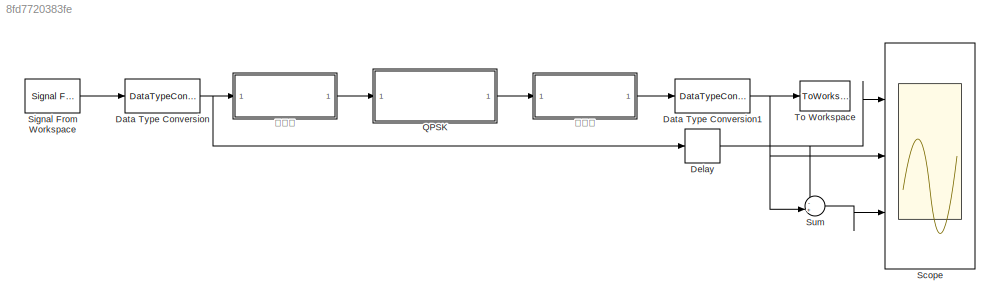
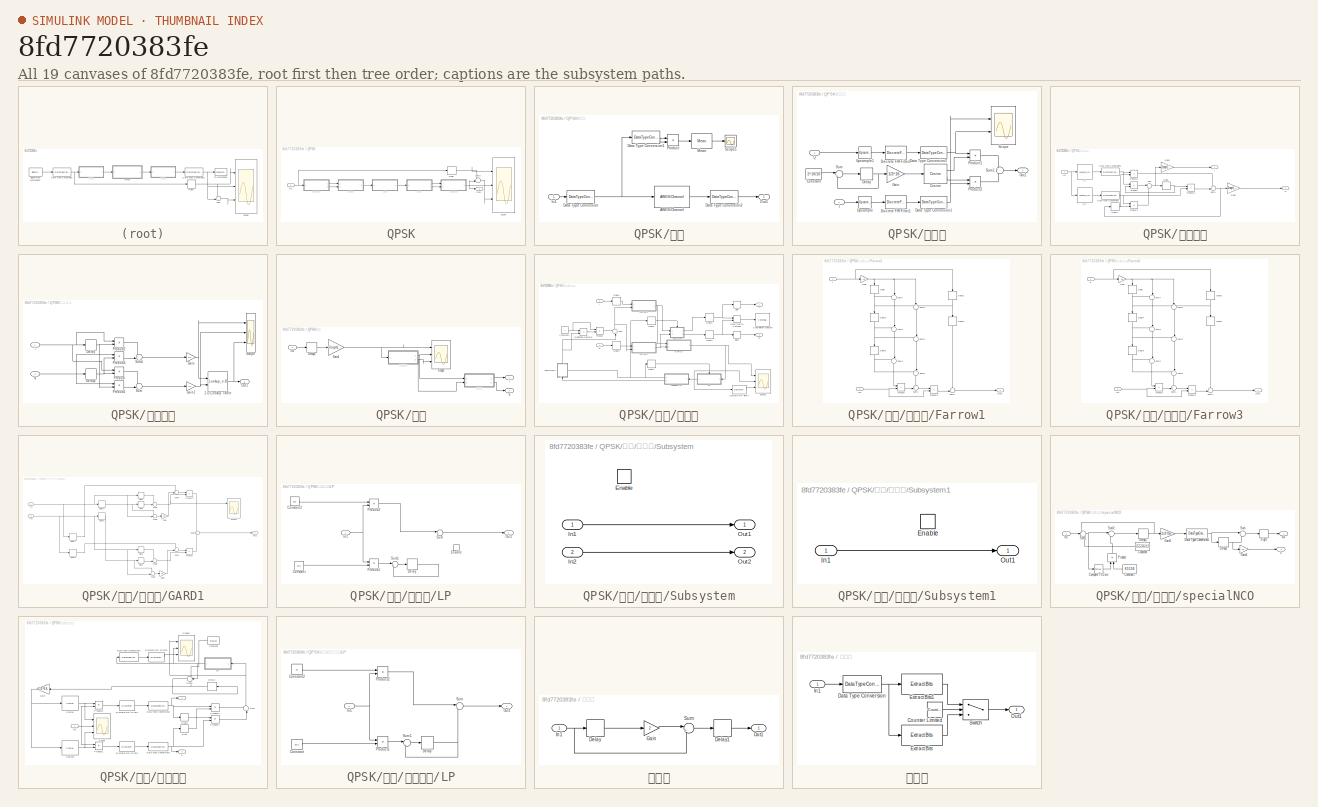
[diagram: thumbnail index - all 19 canvases of the model, root first then tree order]
MODEL slx_8fd7720383fe
KIND model
CONFIG AbsTol = auto
CONFIG EnableMultiTasking = off
CONFIG FixedStep = auto
CONFIG MaxStep = auto
CONFIG MinStep = auto
CONFIG RelTol = 1e-3
CONFIG SampleTimeConstraint = Unconstrained
CONFIG Solver = VariableStepAuto
CONFIG SolverName = VariableStepAuto
CONFIG StartTime = 0.0
CONFIG StopTime = 200
BLOCK [DataTypeConversion] Data Type Conversion
  OutDataTypeStr = int8
  RndMeth = Floor
  SaturateOnIntegerOverflow = off
BLOCK [DataTypeConversion] Data Type Conversion1
  OutDataTypeStr = boolean
  RndMeth = Floor
  SaturateOnIntegerOverflow = off
BLOCK [Delay] Delay
  DelayLength = 19
  InitialCondition = 0
  InputPortMap = u0
  Ports = [1, 1]
  SampleTime = 0.05
BLOCK [SubSystem] QPSK
  Ports = [1, 1]
  RequestExecContextInheritance = off
BLOCK [Delay] QPSK/Delay
  DelayLength = 8
  InitialCondition = 0
  InputPortMap = u0
  Ports = [1, 1]
  SampleTime = 0.1
BLOCK [Inport] QPSK/In1
BLOCK [Outport] QPSK/Out1
BLOCK [Scope] QPSK/Scope
  Floating = off
  NumInputPorts = 3
  Ports = [3]
  ScopeSpecificationString = Simulink.scopes.TimeScopeBlockCfg('CurrentConfiguration', extmgr.ConfigurationSet(extmgr.Configuration('Core','General UI',true),extmgr.Configuration('Core','Source UI',true),extmgr.Configuration('Sources','WiredSimulink',true,'DataLoggingVariableName','ScopeData1'),extmgr.Configuration('Visuals','Time Domain',true,'SerializedDisplays',{struct('MinYLimReal','-0.375','MaxYLimReal','3.375','YLabelRe...<+3001ch>
BLOCK [Sum] QPSK/Sum3
  Inputs = -+|
  Ports = [2, 1]
BLOCK [SubSystem] QPSK/信道
  Ports = [1, 1]
  RequestExecContextInheritance = off
BLOCK [Reference] QPSK/信道/AWGN Channel  REF=commchan3/AWGN
Channel
  Ports = [1, 1]
  SourceBlock = commchan3/AWGN\nChannel
  SourceProductBaseCode = CM
  SourceType = AWGN Channel
  UserDataPersistent = on
BLOCK [DataTypeConversion] QPSK/信道/Data Type Conversion
  OutDataTypeStr = double
  RndMeth = Floor
  SaturateOnIntegerOverflow = off
BLOCK [DataTypeConversion] QPSK/信道/Data Type Conversion1
  RndMeth = Floor
  SaturateOnIntegerOverflow = off
BLOCK [DataTypeConversion] QPSK/信道/Data Type Conversion2
  OutDataTypeStr = fixdt(1,32,28)
  RndMeth = Floor
  SaturateOnIntegerOverflow = off
BLOCK [Inport] QPSK/信道/In1
BLOCK [Reference] QPSK/信道/Mean  REF=dspstat3/Mean
  Ports = [1, 1]
  SourceBlock = dspstat3/Mean
  SourceProductBaseCode = DS
  SourceType = Mean
  UserDataPersistent = on
BLOCK [Outport] QPSK/信道/Out1
BLOCK [Product] QPSK/信道/Product
  Ports = [2, 1]
BLOCK [Scope] QPSK/信道/Scope1
  Floating = off
  NumInputPorts = 1
  Ports = [1]
  ScopeSpecificationString = Simulink.scopes.TimeScopeBlockCfg('CurrentConfiguration', extmgr.ConfigurationSet(extmgr.Configuration('Core','General UI',true),extmgr.Configuration('Core','Source UI',true),extmgr.Configuration('Sources','WiredSimulink',true,'DataLoggingVariableName','ScopeData1'),extmgr.Configuration('Visuals','Time Domain',true,'SerializedDisplays',{struct('MinYLimReal','0.04995','MaxYLimReal','0.05116','YLabe...<+1434ch>
BLOCK [SubSystem] QPSK/发射机
  Ports = [2, 1]
  RequestExecContextInheritance = off
BLOCK [Constant] QPSK/发射机/Constant
  Value = 2^16/10
BLOCK [Reference] QPSK/发射机/Cosine  REF=simulink/Lookup
Tables/Cosine
  Ports = [1, 2]
  SourceBlock = simulink/Lookup\nTables/Cosine
  SourceProductBaseCode = SL
  SourceType = Sine and Cosine
BLOCK [DataTypeConversion] QPSK/发射机/Data Type Conversion1
  OutDataTypeStr = fixdt(1,32,28)
  RndMeth = Floor
  SaturateOnIntegerOverflow = off
BLOCK [DataTypeConversion] QPSK/发射机/Data Type Conversion2
  OutDataTypeStr = fixdt(1,32,28)
  RndMeth = Floor
  SaturateOnIntegerOverflow = off
BLOCK [Delay] QPSK/发射机/Delay
  DelayLength = 1
  InitialCondition = 0
  InputPortMap = u0
  Ports = [1, 1]
  SampleTime = 0.01
BLOCK [DiscreteFir] QPSK/发射机/Discrete FIR Filter1
  Coefficients = [-0.0119566381847077	-0.00554510890605436	0.00241382573479933	0.0111377436911783	0.0196550101509641	0.0268984171784200	0.0318197882559029	0.0335144832609033	0.0313427539687735	0.0250342434675171	0.0147627477015526	0.00118065713392810	-0.0145939012931128	-0.0310396234166703	-0.0463415853998726	-0.0585399944060724	-0.0657057782491950	-0.0661271775764019	-0.0584895064408425	-0.0420300071775653	-0.016...<+773ch>  <repeated x5 — deduplicated; at blocks: Discrete FIR Filter1, Discrete FIR Filter2, Discrete FIR Filter5>
  InputPortMap = u0
  OutputPortMap = o0
  Ports = [1, 1]
BLOCK [DiscreteFir] QPSK/发射机/Discrete FIR Filter2
  InputPortMap = u0
  OutputPortMap = o0
  Ports = [1, 1]
BLOCK [Gain] QPSK/发射机/Gain
  Gain = 1/2^16
BLOCK [Inport] QPSK/发射机/I
BLOCK [Outport] QPSK/发射机/Out1
BLOCK [Product] QPSK/发射机/Product1
  OutDataTypeStr = fixdt(1,32,28)
  Ports = [2, 1]
BLOCK [Product] QPSK/发射机/Product2
  OutDataTypeStr = fixdt(1,32,28)
  Ports = [2, 1]
BLOCK [Inport] QPSK/发射机/Q
  Port = 2
BLOCK [Scope] QPSK/发射机/Scope
  Floating = off
  NumInputPorts = 2
  Ports = [2]
  ScopeSpecificationString = Simulink.scopes.TimeScopeBlockCfg('CurrentConfiguration', extmgr.ConfigurationSet(extmgr.Configuration('Core','General UI',true),extmgr.Configuration('Core','Source UI',true),extmgr.Configuration('Sources','WiredSimulink',true,'DataLoggingVariableName','ScopeData3'),extmgr.Configuration('Visuals','Time Domain',true,'SerializedDisplays',{struct('MinYLimReal','-0.43095','MaxYLimReal','0.41183','YLab...<+2230ch>
BLOCK [Sum] QPSK/发射机/Sum
  Inputs = |++
  OutDataTypeStr = fixdt(0,32,16)
  OutMax = [2^16-1]
  OutMin = [0]
  Ports = [2, 1]
BLOCK [Sum] QPSK/发射机/Sum1
  Inputs = +|+
  Ports = [2, 1]
BLOCK [Reference] QPSK/发射机/Upsample  REF=dspsigops/Upsample
  Ports = [1, 1]
  SourceBlock = dspsigops/Upsample
  SourceProductBaseCode = DS
  SourceType = Upsample
  UserDataPersistent = on
BLOCK [Reference] QPSK/发射机/Upsample1  REF=dspsigops/Upsample
  Ports = [1, 1]
  SourceBlock = dspsigops/Upsample
  SourceProductBaseCode = DS
  SourceType = Upsample
  UserDataPersistent = on
BLOCK [SubSystem] QPSK/差分编码
  Ports = [1, 2]
  RequestExecContextInheritance = off
BLOCK [DataTypeConversion] QPSK/差分编码/Data Type Conversion
  OutDataTypeStr = int8
  RndMeth = Floor
  SaturateOnIntegerOverflow = off
BLOCK [DataTypeConversion] QPSK/差分编码/Data Type Conversion1
  OutDataTypeStr = int8
  RndMeth = Floor
  SaturateOnIntegerOverflow = off
BLOCK [Delay] QPSK/差分编码/Delay
  DelayLength = 1
  InitialCondition = 1
  InputPortMap = u0
  Ports = [1, 1]
  SampleTime = 0.1
BLOCK [Delay] QPSK/差分编码/Delay1
  DelayLength = 1
  InitialCondition = 1
  InputPortMap = u0
  Ports = [1, 1]
  SampleTime = 0.1
BLOCK [Gain] QPSK/差分编码/Gain1
  Gain = 1/sqrt(2)
  OutDataTypeStr = fixdt(1,32,28)
BLOCK [Gain] QPSK/差分编码/Gain2
  Gain = 1/sqrt(2)
  OutDataTypeStr = fixdt(1,32,28)
BLOCK [Outport] QPSK/差分编码/I
BLOCK [Inport] QPSK/差分编码/In1
BLOCK [Lookup_n-D] QPSK/差分编码/I路
  BreakpointsForDimension1 = [0:3]
  BreakpointsForDimension2 = [0:3]
  ExtrapMethod = Clip
  InternalRulePriority = Speed
  NumberOfTableDimensions = 1
  Ports = [1, 1]
  RndMeth = Simplest
  Table = [1 0 0 -1]
BLOCK [Product] QPSK/差分编码/Product
  OutDataTypeStr = int8
  Ports = [2, 1]
BLOCK [Product] QPSK/差分编码/Product1
  OutDataTypeStr = int8
  Ports = [2, 1]
BLOCK [Product] QPSK/差分编码/Product2
  OutDataTypeStr = int8
  Ports = [2, 1]
BLOCK [Product] QPSK/差分编码/Product3
  OutDataTypeStr = int8
  Ports = [2, 1]
BLOCK [Outport] QPSK/差分编码/Q
  Port = 2
BLOCK [Lookup_n-D] QPSK/差分编码/Q路
  BreakpointsForDimension1 = [0:3]
  BreakpointsForDimension2 = [0:3]
  ExtrapMethod = Clip
  InternalRulePriority = Speed
  NumberOfTableDimensions = 1
  Ports = [1, 1]
  RndMeth = Simplest
  Table = [0 1 -1 0]
BLOCK [Sum] QPSK/差分编码/Sum
  Inputs = |+-
  Ports = [2, 1]
BLOCK [Sum] QPSK/差分编码/Sum1
  Inputs = ++|
  Ports = [2, 1]
BLOCK [SubSystem] QPSK/差分解码
  Ports = [2, 1]
  RequestExecContextInheritance = off
BLOCK [Lookup_n-D] QPSK/差分解码/2-D Lookup Table
  BreakpointsForDimension1 = [-1 0 1]
  BreakpointsForDimension2 = [-1 0 1]
  ExtrapMethod = Clip
  InternalRulePriority = Speed
  Ports = [2, 1]
  RndMeth = Simplest
  Table = [0 3 0; 2 0 1; 0 0 0]
BLOCK [Delay] QPSK/差分解码/Delay
  DelayLength = 1
  InitialCondition = 0
  InputPortMap = u0
  Ports = [1, 1]
  SampleTime = 0.1
BLOCK [Delay] QPSK/差分解码/Delay1
  DelayLength = 1
  InitialCondition = 0
  InputPortMap = u0
  Ports = [1, 1]
  SampleTime = 0.1
BLOCK [Gain] QPSK/差分解码/Gain
  Gain = 1/2
  OutDataTypeStr = fixdt(1,32,28)
BLOCK [Gain] QPSK/差分解码/Gain1
  Gain = 1/2
  OutDataTypeStr = fixdt(1,32,28)
BLOCK [Outport] QPSK/差分解码/Out1
BLOCK [Product] QPSK/差分解码/Product
  OutDataTypeStr = fixdt(1,32,28)
  Ports = [2, 1]
BLOCK [Product] QPSK/差分解码/Product1
  OutDataTypeStr = fixdt(1,32,28)
  Ports = [2, 1]
BLOCK [Product] QPSK/差分解码/Product2
  OutDataTypeStr = fixdt(1,32,28)
  Ports = [2, 1]
BLOCK [Product] QPSK/差分解码/Product3
  OutDataTypeStr = fixdt(1,32,28)
  Ports = [2, 1]
BLOCK [Scope] QPSK/差分解码/Scope
  Floating = off
  NumInputPorts = 3
  Ports = [3]
  ScopeSpecificationString = Simulink.scopes.TimeScopeBlockCfg('CurrentConfiguration', extmgr.ConfigurationSet(extmgr.Configuration('Core','General UI',true),extmgr.Configuration('Core','Source UI',true),extmgr.Configuration('Sources','WiredSimulink',true,'DataLoggingVariableName','ScopeData1'),extmgr.Configuration('Visuals','Time Domain',true,'SerializedDisplays',{struct('MinYLimReal','-1.25','MaxYLimReal','1.25','YLabelReal...<+2699ch>
BLOCK [Sum] QPSK/差分解码/Sum
  Inputs = -+|
  OutDataTypeStr = fixdt(1,32,28)
  Ports = [2, 1]
BLOCK [Sum] QPSK/差分解码/Sum1
  Inputs = ++|
  OutDataTypeStr = fixdt(1,32,28)
  Ports = [2, 1]
BLOCK [Inport] QPSK/差分解码/i
BLOCK [Inport] QPSK/差分解码/q
  Port = 2
BLOCK [SubSystem] QPSK/解调
  Ports = [1, 2]
  RequestExecContextInheritance = off
BLOCK [Delay] QPSK/解调/Delay2
  DelayLength = 1
  InitialCondition = 0
  InputPortMap = u0
  Ports = [1, 1]
  SampleTime = 0.01
BLOCK [Gain] QPSK/解调/Gain1
  Gain = 5/sqrt(2)
  OutDataTypeStr = fixdt(1,32,28)
BLOCK [Inport] QPSK/解调/In1
BLOCK [Scope] QPSK/解调/Scope
  Floating = off
  NumInputPorts = 3
  Ports = [3]
  ScopeSpecificationString = Simulink.scopes.TimeScopeBlockCfg('CurrentConfiguration', extmgr.ConfigurationSet(extmgr.Configuration('Core','General UI',true),extmgr.Configuration('Core','Source UI',true),extmgr.Configuration('Sources','WiredSimulink',true,'DataLoggingVariableName','ScopeData2'),extmgr.Configuration('Visuals','Time Domain',true,'SerializedDisplays',{struct('MinYLimReal','-2.48299','MaxYLimReal','2.50353','YLab...<+2733ch>
BLOCK [Outport] QPSK/解调/i
BLOCK [Outport] QPSK/解调/q
  Port = 2
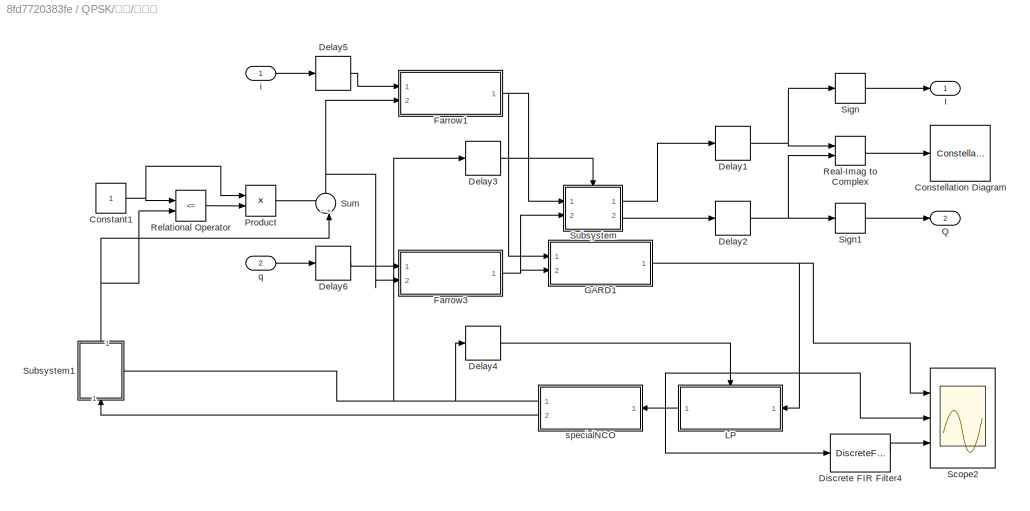
BLOCK [SubSystem] QPSK/解调/位同步
  Ports = [2, 2]
  RequestExecContextInheritance = off
BLOCK [Constant] QPSK/解调/位同步/Constant1
  OutDataTypeStr = fixdt(1,32,28)
  SampleTime = 0.01
BLOCK [ConstellationDiagram] QPSK/解调/位同步/Constellation Diagram
  Ports = [1]
  ScopeSpecificationString = comm.scopes.ConstellationDiagramBlockCfg('CurrentConfiguration', extmgr.ConfigurationSet(extmgr.Configuration('Core','General UI',true),extmgr.Configuration('Core','Source UI',true),extmgr.Configuration('Sources','WiredSimulink',true),extmgr.Configuration('Sources','Simulink',false),extmgr.Configuration('Sources','File',false),extmgr.Configuration('Sources','Workspace',false),extmgr.Configuration(...<+1868ch>
BLOCK [Delay] QPSK/解调/位同步/Delay1
  DelayLength = 1
  InitialCondition = 0
  InputPortMap = u0
  Ports = [1, 1]
  SampleTime = 0.1
BLOCK [Delay] QPSK/解调/位同步/Delay2
  DelayLength = 1
  InitialCondition = 0
  InputPortMap = u0
  Ports = [1, 1]
  SampleTime = 0.1
BLOCK [Delay] QPSK/解调/位同步/Delay3
  InitialCondition = 0
  InputPortMap = u0
  Ports = [1, 1]
BLOCK [Delay] QPSK/解调/位同步/Delay4
  InitialCondition = 0
  InputPortMap = u0
  Ports = [1, 1]
BLOCK [Delay] QPSK/解调/位同步/Delay5
  DelayLength = 1
  InitialCondition = 0
  InputPortMap = u0
  Ports = [1, 1]
  SampleTime = 0.01
BLOCK [Delay] QPSK/解调/位同步/Delay6
  DelayLength = 1
  InitialCondition = 0
  InputPortMap = u0
  Ports = [1, 1]
  SampleTime = 0.01
BLOCK [DiscreteFir] QPSK/解调/位同步/Discrete FIR Filter4
  Coefficients = [5.38827670327720e-05	8.37859864059126e-06	9.02577071280919e-06	9.70599515144445e-06	1.04165818557214e-05	1.11621497031896e-05	1.19399905979190e-05	1.27547662205456e-05	1.36038280216497e-05	1.44919424768979e-05	1.54165002359471e-05	1.63821647738810e-05	1.73863448370645e-05	1.84338552877666e-05	1.95220392829791e-05	2.06555805408248e-05	2.18322698177188e-05	2.30558422383026e-05	2.43269378472256e-05	...<+12509ch>
  InputPortMap = u0
  OutputPortMap = o0
  Ports = [1, 1]
BLOCK [SubSystem] QPSK/解调/位同步/Farrow1
  Ports = [2, 1]
  RequestExecContextInheritance = off
BLOCK [Delay] QPSK/解调/位同步/Farrow1/Delay
  DelayLength = 1
  InitialCondition = 0
  InputPortMap = u0
  NameLocation = left
  Ports = [1, 1]
BLOCK [Delay] QPSK/解调/位同步/Farrow1/Delay1
  DelayLength = 1
  InitialCondition = 0
  InputPortMap = u0
  NameLocation = left
  Ports = [1, 1]
BLOCK [Delay] QPSK/解调/位同步/Farrow1/Delay2
  DelayLength = 1
  InitialCondition = 0
  InputPortMap = u0
  NameLocation = left
  Ports = [1, 1]
BLOCK [Delay] QPSK/解调/位同步/Farrow1/Delay3
  DelayLength = 1
  InitialCondition = 0
  InputPortMap = u0
  NameLocation = left
  Ports = [1, 1]
BLOCK [Delay] QPSK/解调/位同步/Farrow1/Delay4
  DelayLength = 1
  InitialCondition = 0
  InputPortMap = u0
  NameLocation = left
  Ports = [1, 1]
BLOCK [Gain] QPSK/解调/位同步/Farrow1/Gain
  Gain = -0.5
  OutDataTypeStr = fixdt(1,32,28)
BLOCK [Inport] QPSK/解调/位同步/Farrow1/In3
  Port = 2
BLOCK [Outport] QPSK/解调/位同步/Farrow1/Out1
BLOCK [Product] QPSK/解调/位同步/Farrow1/Product
  OutDataTypeStr = fixdt(1,32,28)
  Ports = [2, 1]
BLOCK [Product] QPSK/解调/位同步/Farrow1/Product1
  OutDataTypeStr = fixdt(1,32,28)
  Ports = [2, 1]
BLOCK [Sum] QPSK/解调/位同步/Farrow1/Sum1
  Inputs = ++|
  Ports = [2, 1]
BLOCK [Sum] QPSK/解调/位同步/Farrow1/Sum2
  Inputs = ++|
  OutDataTypeStr = fixdt(1,32,28)
  Ports = [2, 1]
BLOCK [Sum] QPSK/解调/位同步/Farrow1/Sum3
  Inputs = ++|
  NameLocation = left
  Ports = [2, 1]
BLOCK [Sum] QPSK/解调/位同步/Farrow1/Sum4
  Inputs = -+|
  NameLocation = left
  Ports = [2, 1]
BLOCK [Sum] QPSK/解调/位同步/Farrow1/Sum5
  Inputs = -++
  NameLocation = left
  Ports = [3, 1]
BLOCK [Sum] QPSK/解调/位同步/Farrow1/Sum6
  Inputs = ++|
  NameLocation = left
  Ports = [2, 1]
BLOCK [Sum] QPSK/解调/位同步/Farrow1/Sum7
  Inputs = +-|
  NameLocation = left
  Ports = [2, 1]
BLOCK [Sum] QPSK/解调/位同步/Farrow1/Sum8
  Inputs = ++|
  NameLocation = left
  Ports = [2, 1]
BLOCK [Inport] QPSK/解调/位同步/Farrow1/i
BLOCK [SubSystem] QPSK/解调/位同步/Farrow3
  Ports = [2, 1]
  RequestExecContextInheritance = off
BLOCK [Delay] QPSK/解调/位同步/Farrow3/Delay
  DelayLength = 1
  InitialCondition = 0
  InputPortMap = u0
  NameLocation = left
  Ports = [1, 1]
BLOCK [Delay] QPSK/解调/位同步/Farrow3/Delay1
  DelayLength = 1
  InitialCondition = 0
  InputPortMap = u0
  NameLocation = left
  Ports = [1, 1]
BLOCK [Delay] QPSK/解调/位同步/Farrow3/Delay2
  DelayLength = 1
  InitialCondition = 0
  InputPortMap = u0
  NameLocation = left
  Ports = [1, 1]
BLOCK [Delay] QPSK/解调/位同步/Farrow3/Delay3
  DelayLength = 1
  InitialCondition = 0
  InputPortMap = u0
  NameLocation = left
  Ports = [1, 1]
BLOCK [Delay] QPSK/解调/位同步/Farrow3/Delay4
  DelayLength = 1
  InitialCondition = 0
  InputPortMap = u0
  NameLocation = left
  Ports = [1, 1]
BLOCK [Gain] QPSK/解调/位同步/Farrow3/Gain
  Gain = -0.5
  OutDataTypeStr = fixdt(1,32,28)
BLOCK [Inport] QPSK/解调/位同步/Farrow3/In3
  Port = 2
BLOCK [Outport] QPSK/解调/位同步/Farrow3/Out1
BLOCK [Product] QPSK/解调/位同步/Farrow3/Product
  OutDataTypeStr = fixdt(1,32,28)
  Ports = [2, 1]
BLOCK [Product] QPSK/解调/位同步/Farrow3/Product1
  OutDataTypeStr = fixdt(1,32,28)
  Ports = [2, 1]
BLOCK [Sum] QPSK/解调/位同步/Farrow3/Sum1
  Inputs = ++|
  Ports = [2, 1]
BLOCK [Sum] QPSK/解调/位同步/Farrow3/Sum2
  Inputs = ++|
  OutDataTypeStr = fixdt(1,32,28)
  Ports = [2, 1]
BLOCK [Sum] QPSK/解调/位同步/Farrow3/Sum3
  Inputs = ++|
  NameLocation = left
  Ports = [2, 1]
BLOCK [Sum] QPSK/解调/位同步/Farrow3/Sum4
  Inputs = -+|
  NameLocation = left
  Ports = [2, 1]
BLOCK [Sum] QPSK/解调/位同步/Farrow3/Sum5
  Inputs = -++
  NameLocation = left
  Ports = [3, 1]
BLOCK [Sum] QPSK/解调/位同步/Farrow3/Sum6
  Inputs = ++|
  NameLocation = left
  Ports = [2, 1]
BLOCK [Sum] QPSK/解调/位同步/Farrow3/Sum7
  Inputs = +-|
  NameLocation = left
  Ports = [2, 1]
BLOCK [Sum] QPSK/解调/位同步/Farrow3/Sum8
  Inputs = ++|
  NameLocation = left
  Ports = [2, 1]
BLOCK [Inport] QPSK/解调/位同步/Farrow3/q
BLOCK [SubSystem] QPSK/解调/位同步/GARD1
  Ports = [2, 1]
  RequestExecContextInheritance = off
BLOCK [Delay] QPSK/解调/位同步/GARD1/Delay1
  DelayLength = 5
  InitialCondition = 0
  InputPortMap = u0
  Ports = [1, 1]
BLOCK [Delay] QPSK/解调/位同步/GARD1/Delay3
  DelayLength = 10
  InitialCondition = 0
  InputPortMap = u0
  Ports = [1, 1]
BLOCK [Delay] QPSK/解调/位同步/GARD1/Delay5
  DelayLength = 10
  InitialCondition = 0
  InputPortMap = u0
  Ports = [1, 1]
BLOCK [Delay] QPSK/解调/位同步/GARD1/Delay6
  DelayLength = 5
  InitialCondition = 0
  InputPortMap = u0
  Ports = [1, 1]
BLOCK [Gain] QPSK/解调/位同步/GARD1/Gain
  Gain = 1/2
  OutDataTypeStr = fixdt(1,32,28)
BLOCK [Gain] QPSK/解调/位同步/GARD1/Gain1
  Gain = 1/2
  OutDataTypeStr = fixdt(1,32,28)
BLOCK [Inport] QPSK/解调/位同步/GARD1/In1
BLOCK [Inport] QPSK/解调/位同步/GARD1/In2
  Port = 2
BLOCK [Outport] QPSK/解调/位同步/GARD1/Out1
BLOCK [Product] QPSK/解调/位同步/GARD1/Product
  OutDataTypeStr = fixdt(1,32,28)
  Ports = [2, 1]
BLOCK [Product] QPSK/解调/位同步/GARD1/Product1
  OutDataTypeStr = fixdt(1,32,28)
  Ports = [2, 1]
BLOCK [Scope] QPSK/解调/位同步/GARD1/Scope2
  Floating = off
  NumInputPorts = 3
  Ports = [3]
  ScopeSpecificationString = Simulink.scopes.TimeScopeBlockCfg('CurrentConfiguration', extmgr.ConfigurationSet(extmgr.Configuration('Core','General UI',true),extmgr.Configuration('Core','Source UI',true),extmgr.Configuration('Sources','WiredSimulink',true,'DataLoggingVariableName','ScopeData2'),extmgr.Configuration('Visuals','Time Domain',true,'SerializedDisplays',{struct('MinYLimReal','-2.5','MaxYLimReal','2.5','YLabelReal',...<+2997ch>
BLOCK [Signum] QPSK/解调/位同步/GARD1/Sign
BLOCK [Signum] QPSK/解调/位同步/GARD1/Sign1
BLOCK [Signum] QPSK/解调/位同步/GARD1/Sign2
BLOCK [Signum] QPSK/解调/位同步/GARD1/Sign3
BLOCK [Sum] QPSK/解调/位同步/GARD1/Sum1
  Inputs = +-|
  OutDataTypeStr = fixdt(1,32,28)
  Ports = [2, 1]
BLOCK [Sum] QPSK/解调/位同步/GARD1/Sum2
  Inputs = +|+
  OutDataTypeStr = fixdt(1,32,28)
  Ports = [2, 1]
BLOCK [Sum] QPSK/解调/位同步/GARD1/Sum3
  Inputs = ++|
  Ports = [2, 1]
BLOCK [Sum] QPSK/解调/位同步/GARD1/Sum4
  Inputs = +-|
  OutDataTypeStr = fixdt(1,32,28)
  Ports = [2, 1]
BLOCK [Sum] QPSK/解调/位同步/GARD1/Sum5
  Inputs = +-|
  Ports = [2, 1]
BLOCK [Sum] QPSK/解调/位同步/GARD1/Sum6
  Inputs = ++|
  Ports = [2, 1]
BLOCK [Sum] QPSK/解调/位同步/GARD1/Sum8
  Inputs = +-|
  Ports = [2, 1]
BLOCK [Outport] QPSK/解调/位同步/I
BLOCK [SubSystem] QPSK/解调/位同步/LP
  Ports = [1, 1, 1]
  RequestExecContextInheritance = off
BLOCK [Constant] QPSK/解调/位同步/LP/Constant
  Value = 2e-5
  VectorParams1D = off
BLOCK [Constant] QPSK/解调/位同步/LP/Constant2
  Value = 100
  VectorParams1D = off
BLOCK [Delay] QPSK/解调/位同步/LP/Delay
  DelayLength = 1
  InitialCondition = 1
  InputPortMap = u0
  Ports = [1, 1]
BLOCK [EnablePort] QPSK/解调/位同步/LP/Enable
  Ports = []
BLOCK [Inport] QPSK/解调/位同步/LP/In1
BLOCK [Outport] QPSK/解调/位同步/LP/Out1
BLOCK [Product] QPSK/解调/位同步/LP/Product1
  OutDataTypeStr = fixdt(1,64,32)
  Ports = [2, 1]
BLOCK [Product] QPSK/解调/位同步/LP/Product2
  OutDataTypeStr = fixdt(1,64,32)
  Ports = [2, 1]
BLOCK [Sum] QPSK/解调/位同步/LP/Sum
  Inputs = |++
  OutDataTypeStr = fixdt(1,64,32)
  Ports = [2, 1]
BLOCK [Sum] QPSK/解调/位同步/LP/Sum1
  Inputs = |++
  OutDataTypeStr = fixdt(1,64,32)
  Ports = [2, 1]
BLOCK [Product] QPSK/解调/位同步/Product
  Ports = [2, 1]
BLOCK [Outport] QPSK/解调/位同步/Q
  Port = 2
BLOCK [RealImagToComplex] QPSK/解调/位同步/Real-Imag to Complex
  Ports = [2, 1]
BLOCK [RelationalOperator] QPSK/解调/位同步/Relational Operator
  InputSameDT = off
  Operator = <=
  OutDataTypeStr = boolean
  Ports = [2, 1]
  RndMeth = Simplest
BLOCK [Scope] QPSK/解调/位同步/Scope2
  Floating = off
  NumInputPorts = 3
  Ports = [3]
  ScopeSpecificationString = Simulink.scopes.TimeScopeBlockCfg('CurrentConfiguration', extmgr.ConfigurationSet(extmgr.Configuration('Core','General UI',true),extmgr.Configuration('Core','Source UI',true),extmgr.Configuration('Sources','WiredSimulink',true,'DataLoggingVariableName','ScopeData2'),extmgr.Configuration('Visuals','Time Domain',true,'SerializedDisplays',{struct('MinYLimReal','-6.41673','MaxYLimReal','7.34934','YLab...<+3027ch>
BLOCK [Signum] QPSK/解调/位同步/Sign
BLOCK [Signum] QPSK/解调/位同步/Sign1
BLOCK [SubSystem] QPSK/解调/位同步/Subsystem
  Ports = [2, 2, 1]
  RequestExecContextInheritance = off
BLOCK [EnablePort] QPSK/解调/位同步/Subsystem/Enable
  Ports = []
BLOCK [Inport] QPSK/解调/位同步/Subsystem/In1
BLOCK [Inport] QPSK/解调/位同步/Subsystem/In2
  Port = 2
BLOCK [Outport] QPSK/解调/位同步/Subsystem/Out1
BLOCK [Outport] QPSK/解调/位同步/Subsystem/Out2
  Port = 2
BLOCK [SubSystem] QPSK/解调/位同步/Subsystem1
  NameLocation = left
  Ports = [1, 1, 1]
  RequestExecContextInheritance = off
BLOCK [EnablePort] QPSK/解调/位同步/Subsystem1/Enable
  Ports = []
BLOCK [Inport] QPSK/解调/位同步/Subsystem1/In1
BLOCK [Outport] QPSK/解调/位同步/Subsystem1/Out1
BLOCK [Sum] QPSK/解调/位同步/Sum
  Inputs = -+|
  NameLocation = right
  OutDataTypeStr = fixdt(1,32,28)
  Ports = [2, 1]
BLOCK [Inport] QPSK/解调/位同步/i
BLOCK [Inport] QPSK/解调/位同步/q
  Port = 2
BLOCK [SubSystem] QPSK/解调/位同步/specialNCO
  Ports = [1, 2]
  RequestExecContextInheritance = off
BLOCK [Reference] QPSK/解调/位同步/specialNCO/Compare To Zero  REF=simulink/Logic and Bit
Operations/Compare
To Zero
  Ports = [1, 1]
  SourceBlock = simulink/Logic and Bit\nOperations/Compare\nTo Zero
  SourceProductBaseCode = SL
  SourceType = Compare To Zero
BLOCK [Constant] QPSK/解调/位同步/specialNCO/Constant
  Value = 65536/10
BLOCK [Constant] QPSK/解调/位同步/specialNCO/Constant1
  Value = 65536
BLOCK [DataTypeConversion] QPSK/解调/位同步/specialNCO/Data Type Conversion1
  NameLocation = top
  OutDataTypeStr = fixdt(1,32,28)
  RndMeth = Floor
  SaturateOnIntegerOverflow = off
BLOCK [Delay] QPSK/解调/位同步/specialNCO/Delay1
  DelayLength = 1
  InitialCondition = 0
  InputPortMap = u0
  Ports = [1, 1]
BLOCK [Delay] QPSK/解调/位同步/specialNCO/Delay2
  DelayLength = 1
  InitialCondition = 0
  InputPortMap = u0
  Ports = [1, 1]
BLOCK [Gain] QPSK/解调/位同步/specialNCO/Gain2
  Gain = 1/2^16
BLOCK [Gain] QPSK/解调/位同步/specialNCO/Gain3
  Gain = 10
  NameLocation = top
BLOCK [Inport] QPSK/解调/位同步/specialNCO/In1
BLOCK [Product] QPSK/解调/位同步/specialNCO/Product
  NameLocation = right
  Ports = [2, 1]
BLOCK [Signum] QPSK/解调/位同步/specialNCO/Sign1
BLOCK [Sum] QPSK/解调/位同步/specialNCO/Sum
  Inputs = |+-
  Ports = [2, 1]
BLOCK [Sum] QPSK/解调/位同步/specialNCO/Sum1
  Inputs = +--
  OutDataTypeStr = fixdt(1,64,32)
  OutMin = [0]
  Ports = [3, 1]
BLOCK [Sum] QPSK/解调/位同步/specialNCO/Sum2
  Inputs = |++
  OutDataTypeStr = fixdt(1,64,32)
  Ports = [2, 1]
BLOCK [Outport] QPSK/解调/位同步/specialNCO/clk
BLOCK [Outport] QPSK/解调/位同步/specialNCO/u
  Port = 2
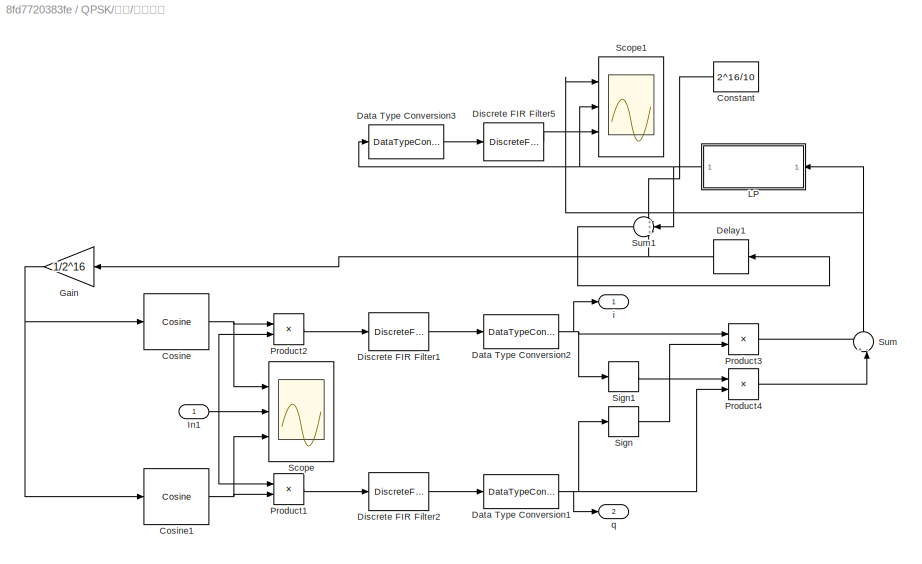
BLOCK [SubSystem] QPSK/解调/载波同步
  Ports = [1, 2]
  RequestExecContextInheritance = off
BLOCK [Constant] QPSK/解调/载波同步/Constant
  Value = 2^16/10
BLOCK [Reference] QPSK/解调/载波同步/Cosine  REF=simulink/Lookup
Tables/Cosine
  Ports = [1, 1]
  SourceBlock = simulink/Lookup\nTables/Cosine
  SourceProductBaseCode = SL
  SourceType = Sine and Cosine
BLOCK [Reference] QPSK/解调/载波同步/Cosine1  REF=simulink/Lookup
Tables/Cosine
  Ports = [1, 1]
  SourceBlock = simulink/Lookup\nTables/Cosine
  SourceProductBaseCode = SL
  SourceType = Sine and Cosine
BLOCK [DataTypeConversion] QPSK/解调/载波同步/Data Type Conversion1
  OutDataTypeStr = fixdt(1,32,28)
  RndMeth = Floor
  SaturateOnIntegerOverflow = off
BLOCK [DataTypeConversion] QPSK/解调/载波同步/Data Type Conversion2
  OutDataTypeStr = fixdt(1,32,28)
  RndMeth = Floor
  SaturateOnIntegerOverflow = off
BLOCK [DataTypeConversion] QPSK/解调/载波同步/Data Type Conversion3
  OutDataTypeStr = double
  RndMeth = Floor
  SaturateOnIntegerOverflow = off
BLOCK [Delay] QPSK/解调/载波同步/Delay1
  DelayLength = 1
  InitialCondition = 0
  InputPortMap = u0
  Ports = [1, 1]
  SampleTime = 0.01
BLOCK [DiscreteFir] QPSK/解调/载波同步/Discrete FIR Filter1
  InputPortMap = u0
  OutputPortMap = o0
  Ports = [1, 1]
BLOCK [DiscreteFir] QPSK/解调/载波同步/Discrete FIR Filter2
  InputPortMap = u0
  OutputPortMap = o0
  Ports = [1, 1]
BLOCK [DiscreteFir] QPSK/解调/载波同步/Discrete FIR Filter5
  InputPortMap = u0
  OutputPortMap = o0
  Ports = [1, 1]
BLOCK [Gain] QPSK/解调/载波同步/Gain
  Gain = 1/2^16
BLOCK [Inport] QPSK/解调/载波同步/In1
BLOCK [SubSystem] QPSK/解调/载波同步/LP
  Ports = [1, 1]
  RequestExecContextInheritance = off
BLOCK [Constant] QPSK/解调/载波同步/LP/Constant
  Value = 2e-2
  VectorParams1D = off
BLOCK [Constant] QPSK/解调/载波同步/LP/Constant2
  Value = 10
  VectorParams1D = off
BLOCK [Delay] QPSK/解调/载波同步/LP/Delay
  DelayLength = 1
  InitialCondition = 0.1
  InputPortMap = u0
  Ports = [1, 1]
BLOCK [Inport] QPSK/解调/载波同步/LP/In1
BLOCK [Outport] QPSK/解调/载波同步/LP/Out1
BLOCK [Product] QPSK/解调/载波同步/LP/Product1
  OutDataTypeStr = fixdt(1,32,15)
  Ports = [2, 1]
BLOCK [Product] QPSK/解调/载波同步/LP/Product2
  OutDataTypeStr = fixdt(1,32,15)
  Ports = [2, 1]
BLOCK [Sum] QPSK/解调/载波同步/LP/Sum
  Inputs = |++
  OutDataTypeStr = fixdt(1,32,15)
  Ports = [2, 1]
BLOCK [Sum] QPSK/解调/载波同步/LP/Sum1
  Inputs = |++
  OutDataTypeStr = fixdt(1,32,15)
  Ports = [2, 1]
BLOCK [Product] QPSK/解调/载波同步/Product1
  OutDataTypeStr = fixdt(1,32,28)
  Ports = [2, 1]
BLOCK [Product] QPSK/解调/载波同步/Product2
  OutDataTypeStr = fixdt(1,32,28)
  Ports = [2, 1]
BLOCK [Product] QPSK/解调/载波同步/Product3
  OutDataTypeStr = fixdt(1,32,28)
  Ports = [2, 1]
BLOCK [Product] QPSK/解调/载波同步/Product4
  OutDataTypeStr = fixdt(1,32,28)
  Ports = [2, 1]
BLOCK [Scope] QPSK/解调/载波同步/Scope
  Floating = off
  NumInputPorts = 3
  Ports = [3]
  ScopeSpecificationString = Simulink.scopes.TimeScopeBlockCfg('CurrentConfiguration', extmgr.ConfigurationSet(extmgr.Configuration('Core','General UI',true),extmgr.Configuration('Core','Source UI',true),extmgr.Configuration('Sources','WiredSimulink',true,'DataLoggingVariableName','ScopeData1'),extmgr.Configuration('Visuals','Time Domain',true,'SerializedDisplays',{struct('MinYLimReal','-1.25','MaxYLimReal','1.25','YLabelReal...<+2701ch>
BLOCK [Scope] QPSK/解调/载波同步/Scope1
  Floating = off
  NumInputPorts = 3
  Ports = [3]
  ScopeSpecificationString = Simulink.scopes.TimeScopeBlockCfg('CurrentConfiguration', extmgr.ConfigurationSet(extmgr.Configuration('Core','General UI',true),extmgr.Configuration('Core','Source UI',true),extmgr.Configuration('Sources','WiredSimulink',true,'DataLoggingVariableName','ScopeData2'),extmgr.Configuration('Visuals','Time Domain',true,'SerializedDisplays',{struct('MinYLimReal','-3.86271','MaxYLimReal','4.17882','YLab...<+2733ch>
BLOCK [Signum] QPSK/解调/载波同步/Sign
BLOCK [Signum] QPSK/解调/载波同步/Sign1
BLOCK [Sum] QPSK/解调/载波同步/Sum
  Inputs = +-|
  NameLocation = left
  Ports = [2, 1]
BLOCK [Sum] QPSK/解调/载波同步/Sum1
  Inputs = +++
  OutDataTypeStr = fixdt(1,32,15)
  OutMax = [2^16-1]
  OutMin = [0]
  Ports = [3, 1]
BLOCK [Outport] QPSK/解调/载波同步/i
BLOCK [Outport] QPSK/解调/载波同步/q
  Port = 2
BLOCK [Scope] Scope
  Floating = off
  NumInputPorts = 3
  Ports = [3]
  ScopeSpecificationString = Simulink.scopes.TimeScopeBlockCfg('CurrentConfiguration', extmgr.ConfigurationSet(extmgr.Configuration('Core','General UI',true),extmgr.Configuration('Core','Source UI',true),extmgr.Configuration('Sources','WiredSimulink',true,'DataLoggingVariableName','ScopeData1'),extmgr.Configuration('Visuals','Time Domain',true,'SerializedDisplays',{struct('MinYLimReal','-0.125','MaxYLimReal','1.125','YLabelRe...<+3039ch>
BLOCK [Reference] Signal From Workspace  REF=dspsrcs4/Signal From
Workspace
  Ports = [0, 1]
  SourceBlock = dspsrcs4/Signal From\nWorkspace
  SourceProductBaseCode = DS
  SourceType = Signal From Workspace
BLOCK [Sum] Sum
  Inputs = -+|
  Ports = [2, 1]
BLOCK [ToWorkspace] To Workspace
  MaxDataPoints = inf
  Ports = [1]
  SampleTime = -1
  Save2DSignal = 2-D array (concatenate along first dimension)
  VariableName = yout
BLOCK [SubSystem] 串转并
  Ports = [1, 1]
  RequestExecContextInheritance = off
BLOCK [Delay] 串转并/Delay
  DelayLength = 1
  InitialCondition = 0
  InputPortMap = u0
  Ports = [1, 1]
  SampleTime = 0.05
BLOCK [Delay] 串转并/Delay1
  DelayLength = 1
  InitialCondition = 0
  InputPortMap = u0
  Ports = [1, 1]
  SampleTime = 0.1
BLOCK [Gain] 串转并/Gain
  Gain = 2
BLOCK [Inport] 串转并/In1
BLOCK [Outport] 串转并/Out1
BLOCK [Sum] 串转并/Sum
  Inputs = |++
  Ports = [2, 1]
BLOCK [SubSystem] 并转串
  Ports = [1, 1]
  RequestExecContextInheritance = off
BLOCK [Reference] 并转串/Counter Limited  REF=simulink/Sources/Counter
Limited
  Ports = [0, 1]
  SourceBlock = simulink/Sources/Counter\nLimited
  SourceProductBaseCode = SL
  SourceType = Counter Limited
BLOCK [DataTypeConversion] 并转串/Data Type Conversion
  OutDataTypeStr = fixdt(0,2,0)
  RndMeth = Floor
  SaturateOnIntegerOverflow = off
BLOCK [Reference] 并转串/Extract Bits  REF=simulink/Logic and Bit
Operations/Extract Bits
  Ports = [1, 1]
  SourceBlock = simulink/Logic and Bit\nOperations/Extract Bits
  SourceProductBaseCode = SL
  SourceType = Extract Bits
BLOCK [Reference] 并转串/Extract Bits1  REF=simulink/Logic and Bit
Operations/Extract Bits
  Ports = [1, 1]
  SourceBlock = simulink/Logic and Bit\nOperations/Extract Bits
  SourceProductBaseCode = SL
  SourceType = Extract Bits
BLOCK [Inport] 并转串/In1
BLOCK [Outport] 并转串/Out1
BLOCK [Switch] 并转串/Switch
  Criteria = u2 > Threshold
  InputSameDT = off
  SaturateOnIntegerOverflow = off
NET Data Type Conversion1:1 -> Scope:2, Sum:2, To Workspace:1
NET Data Type Conversion:1 -> Delay:1, 串转并:1
NET Delay:1 -> Scope:1, Sum:1
NET QPSK/Delay:1 -> QPSK/Scope:1, QPSK/Sum3:1
NET QPSK/In1:1 -> QPSK/Delay:1, QPSK/差分编码:1
LINE QPSK/Sum3:1 -> QPSK/Scope:3
LINE QPSK/信道/AWGN Channel:1 -> QPSK/信道/Data Type Conversion2:1
NET QPSK/信道/Data Type Conversion1:1 -> QPSK/信道/Product:1, QPSK/信道/Product:2
LINE QPSK/信道/Data Type Conversion2:1 -> QPSK/信道/Out1:1
NET QPSK/信道/Data Type Conversion:1 -> QPSK/信道/AWGN Channel:1, QPSK/信道/Data Type Conversion1:1
LINE QPSK/信道/In1:1 -> QPSK/信道/Data Type Conversion:1
LINE QPSK/信道/Mean:1 -> QPSK/信道/Scope1:1
LINE QPSK/信道/Product:1 -> QPSK/信道/Mean:1
LINE QPSK/信道:1 -> QPSK/解调:1
LINE QPSK/发射机/Constant:1 -> QPSK/发射机/Sum:1
LINE QPSK/发射机/Cosine:1 -> QPSK/发射机/Product1:2
LINE QPSK/发射机/Cosine:2 -> QPSK/发射机/Product2:1
NET QPSK/发射机/Data Type Conversion1:1 -> QPSK/发射机/Product2:2, QPSK/发射机/Scope:1
NET QPSK/发射机/Data Type Conversion2:1 -> QPSK/发射机/Product1:1, QPSK/发射机/Scope:2
NET QPSK/发射机/Delay:1 -> QPSK/发射机/Gain:1, QPSK/发射机/Sum:2
LINE QPSK/发射机/Discrete FIR Filter1:1 -> QPSK/发射机/Data Type Conversion1:1
LINE QPSK/发射机/Discrete FIR Filter2:1 -> QPSK/发射机/Data Type Conversion2:1
LINE QPSK/发射机/Gain:1 -> QPSK/发射机/Cosine:1
LINE QPSK/发射机/I:1 -> QPSK/发射机/Upsample:1
LINE QPSK/发射机/Product1:1 -> QPSK/发射机/Sum1:1
LINE QPSK/发射机/Product2:1 -> QPSK/发射机/Sum1:2
LINE QPSK/发射机/Q:1 -> QPSK/发射机/Upsample1:1
LINE QPSK/发射机/Sum1:1 -> QPSK/发射机/Out1:1
LINE QPSK/发射机/Sum:1 -> QPSK/发射机/Delay:1
LINE QPSK/发射机/Upsample1:1 -> QPSK/发射机/Discrete FIR Filter2:1
LINE QPSK/发射机/Upsample:1 -> QPSK/发射机/Discrete FIR Filter1:1
LINE QPSK/发射机:1 -> QPSK/信道:1
NET QPSK/差分编码/Data Type Conversion1:1 -> QPSK/差分编码/Product2:1, QPSK/差分编码/Product:1
NET QPSK/差分编码/Data Type Conversion:1 -> QPSK/差分编码/Product1:1, QPSK/差分编码/Product3:2
NET QPSK/差分编码/Delay1:1 -> QPSK/差分编码/Product1:2, QPSK/差分编码/Product2:2
NET QPSK/差分编码/Delay:1 -> QPSK/差分编码/Product3:1, QPSK/差分编码/Product:2
LINE QPSK/差分编码/Gain1:1 -> QPSK/差分编码/Q:1
LINE QPSK/差分编码/Gain2:1 -> QPSK/差分编码/I:1
NET QPSK/差分编码/In1:1 -> QPSK/差分编码/I路:1, QPSK/差分编码/Q路:1
LINE QPSK/差分编码/I路:1 -> QPSK/差分编码/Data Type Conversion1:1
LINE QPSK/差分编码/Product1:1 -> QPSK/差分编码/Sum:2
LINE QPSK/差分编码/Product2:1 -> QPSK/差分编码/Sum1:1
LINE QPSK/差分编码/Product3:1 -> QPSK/差分编码/Sum1:2
LINE QPSK/差分编码/Product:1 -> QPSK/差分编码/Sum:1
LINE QPSK/差分编码/Q路:1 -> QPSK/差分编码/Data Type Conversion:1
NET QPSK/差分编码/Sum1:1 -> QPSK/差分编码/Delay1:1, QPSK/差分编码/Gain1:1
NET QPSK/差分编码/Sum:1 -> QPSK/差分编码/Delay:1, QPSK/差分编码/Gain2:1
LINE QPSK/差分编码:1 -> QPSK/发射机:1
LINE QPSK/差分编码:2 -> QPSK/发射机:2
NET QPSK/差分解码/2-D Lookup Table:1 -> QPSK/差分解码/Out1:1, QPSK/差分解码/Scope:3
NET QPSK/差分解码/Delay1:1 -> QPSK/差分解码/Product3:2, QPSK/差分解码/Product:2
NET QPSK/差分解码/Delay:1 -> QPSK/差分解码/Product1:2, QPSK/差分解码/Product2:2
NET QPSK/差分解码/Gain1:1 -> QPSK/差分解码/2-D Lookup Table:2, QPSK/差分解码/Scope:2
NET QPSK/差分解码/Gain:1 -> QPSK/差分解码/2-D Lookup Table:1, QPSK/差分解码/Scope:1
LINE QPSK/差分解码/Product1:1 -> QPSK/差分解码/Sum:2
LINE QPSK/差分解码/Product2:1 -> QPSK/差分解码/Sum1:1
LINE QPSK/差分解码/Product3:1 -> QPSK/差分解码/Sum1:2
LINE QPSK/差分解码/Product:1 -> QPSK/差分解码/Sum:1
LINE QPSK/差分解码/Sum1:1 -> QPSK/差分解码/Gain:1
LINE QPSK/差分解码/Sum:1 -> QPSK/差分解码/Gain1:1
NET QPSK/差分解码/i:1 -> QPSK/差分解码/Delay:1, QPSK/差分解码/Product2:1, QPSK/差分解码/Product:1
NET QPSK/差分解码/q:1 -> QPSK/差分解码/Delay1:1, QPSK/差分解码/Product1:1, QPSK/差分解码/Product3:1
NET QPSK/差分解码:1 -> QPSK/Out1:1, QPSK/Scope:2, QPSK/Sum3:2
LINE QPSK/解调/Delay2:1 -> QPSK/解调/Gain1:1
NET QPSK/解调/Gain1:1 -> QPSK/解调/Scope:1, QPSK/解调/载波同步:1
LINE QPSK/解调/In1:1 -> QPSK/解调/Delay2:1
NET QPSK/解调/位同步/Constant1:1 -> QPSK/解调/位同步/Product:1, QPSK/解调/位同步/Relational Operator:1
NET QPSK/解调/位同步/Delay1:1 -> QPSK/解调/位同步/Real-Imag to Complex:1, QPSK/解调/位同步/Sign:1
NET QPSK/解调/位同步/Delay2:1 -> QPSK/解调/位同步/Real-Imag to Complex:2, QPSK/解调/位同步/Sign1:1
LINE QPSK/解调/位同步/Delay3:1 -> QPSK/解调/位同步/Subsystem:enable
LINE QPSK/解调/位同步/Delay4:1 -> QPSK/解调/位同步/LP:enable
LINE QPSK/解调/位同步/Delay5:1 -> QPSK/解调/位同步/Farrow1:1
LINE QPSK/解调/位同步/Delay6:1 -> QPSK/解调/位同步/Farrow3:1
LINE QPSK/解调/位同步/Discrete FIR Filter4:1 -> QPSK/解调/位同步/Scope2:3
NET QPSK/解调/位同步/Farrow1/Delay1:1 -> QPSK/解调/位同步/Farrow1/Delay2:1, QPSK/解调/位同步/Farrow1/Sum5:3
LINE QPSK/解调/位同步/Farrow1/Delay2:1 -> QPSK/解调/位同步/Farrow1/Sum2:1
NET QPSK/解调/位同步/Farrow1/Delay3:1 -> QPSK/解调/位同步/Farrow1/Sum4:1, QPSK/解调/位同步/Farrow1/Sum8:1
NET QPSK/解调/位同步/Farrow1/Delay4:1 -> QPSK/解调/位同步/Farrow1/Delay3:1, QPSK/解调/位同步/Farrow1/Sum3:1, QPSK/解调/位同步/Farrow1/Sum6:1
NET QPSK/解调/位同步/Farrow1/Delay:1 -> QPSK/解调/位同步/Farrow1/Delay4:1, QPSK/解调/位同步/Farrow1/Sum5:1, QPSK/解调/位同步/Farrow1/Sum7:1
NET QPSK/解调/位同步/Farrow1/Gain:1 -> QPSK/解调/位同步/Farrow1/Delay:1, QPSK/解调/位同步/Farrow1/Sum5:2, QPSK/解调/位同步/Farrow1/Sum7:2
NET QPSK/解调/位同步/Farrow1/In3:1 -> QPSK/解调/位同步/Farrow1/Product1:2, QPSK/解调/位同步/Farrow1/Product:2
LINE QPSK/解调/位同步/Farrow1/Product1:1 -> QPSK/解调/位同步/Farrow1/Sum2:2
LINE QPSK/解调/位同步/Farrow1/Product:1 -> QPSK/解调/位同步/Farrow1/Sum1:2
LINE QPSK/解调/位同步/Farrow1/Sum1:1 -> QPSK/解调/位同步/Farrow1/Product1:1
LINE QPSK/解调/位同步/Farrow1/Sum2:1 -> QPSK/解调/位同步/Farrow1/Out1:1
LINE QPSK/解调/位同步/Farrow1/Sum3:1 -> QPSK/解调/位同步/Farrow1/Sum8:2
LINE QPSK/解调/位同步/Farrow1/Sum4:1 -> QPSK/解调/位同步/Farrow1/Product:1
LINE QPSK/解调/位同步/Farrow1/Sum5:1 -> QPSK/解调/位同步/Farrow1/Sum3:2
LINE QPSK/解调/位同步/Farrow1/Sum6:1 -> QPSK/解调/位同步/Farrow1/Sum4:2
LINE QPSK/解调/位同步/Farrow1/Sum7:1 -> QPSK/解调/位同步/Farrow1/Sum6:2
LINE QPSK/解调/位同步/Farrow1/Sum8:1 -> QPSK/解调/位同步/Farrow1/Sum1:1
NET QPSK/解调/位同步/Farrow1/i:1 -> QPSK/解调/位同步/Farrow1/Delay1:1, QPSK/解调/位同步/Farrow1/Gain:1
NET QPSK/解调/位同步/Farrow1:1 -> QPSK/解调/位同步/GARD1:1, QPSK/解调/位同步/Subsystem:1
NET QPSK/解调/位同步/Farrow3/Delay1:1 -> QPSK/解调/位同步/Farrow3/Delay2:1, QPSK/解调/位同步/Farrow3/Sum5:3
LINE QPSK/解调/位同步/Farrow3/Delay2:1 -> QPSK/解调/位同步/Farrow3/Sum2:1
NET QPSK/解调/位同步/Farrow3/Delay3:1 -> QPSK/解调/位同步/Farrow3/Sum4:1, QPSK/解调/位同步/Farrow3/Sum8:1
NET QPSK/解调/位同步/Farrow3/Delay4:1 -> QPSK/解调/位同步/Farrow3/Delay3:1, QPSK/解调/位同步/Farrow3/Sum3:1, QPSK/解调/位同步/Farrow3/Sum6:1
NET QPSK/解调/位同步/Farrow3/Delay:1 -> QPSK/解调/位同步/Farrow3/Delay4:1, QPSK/解调/位同步/Farrow3/Sum5:1, QPSK/解调/位同步/Farrow3/Sum7:1
NET QPSK/解调/位同步/Farrow3/Gain:1 -> QPSK/解调/位同步/Farrow3/Delay:1, QPSK/解调/位同步/Farrow3/Sum5:2, QPSK/解调/位同步/Farrow3/Sum7:2
NET QPSK/解调/位同步/Farrow3/In3:1 -> QPSK/解调/位同步/Farrow3/Product1:2, QPSK/解调/位同步/Farrow3/Product:2
LINE QPSK/解调/位同步/Farrow3/Product1:1 -> QPSK/解调/位同步/Farrow3/Sum2:2
LINE QPSK/解调/位同步/Farrow3/Product:1 -> QPSK/解调/位同步/Farrow3/Sum1:2
LINE QPSK/解调/位同步/Farrow3/Sum1:1 -> QPSK/解调/位同步/Farrow3/Product1:1
LINE QPSK/解调/位同步/Farrow3/Sum2:1 -> QPSK/解调/位同步/Farrow3/Out1:1
LINE QPSK/解调/位同步/Farrow3/Sum3:1 -> QPSK/解调/位同步/Farrow3/Sum8:2
LINE QPSK/解调/位同步/Farrow3/Sum4:1 -> QPSK/解调/位同步/Farrow3/Product:1
LINE QPSK/解调/位同步/Farrow3/Sum5:1 -> QPSK/解调/位同步/Farrow3/Sum3:2
LINE QPSK/解调/位同步/Farrow3/Sum6:1 -> QPSK/解调/位同步/Farrow3/Sum4:2
LINE QPSK/解调/位同步/Farrow3/Sum7:1 -> QPSK/解调/位同步/Farrow3/Sum6:2
LINE QPSK/解调/位同步/Farrow3/Sum8:1 -> QPSK/解调/位同步/Farrow3/Sum1:1
NET QPSK/解调/位同步/Farrow3/q:1 -> QPSK/解调/位同步/Farrow3/Delay1:1, QPSK/解调/位同步/Farrow3/Gain:1
NET QPSK/解调/位同步/Farrow3:1 -> QPSK/解调/位同步/GARD1:2, QPSK/解调/位同步/Subsystem:2
LINE QPSK/解调/位同步/GARD1/Delay1:1 -> QPSK/解调/位同步/GARD1/Sum4:1
NET QPSK/解调/位同步/GARD1/Delay3:1 -> QPSK/解调/位同步/GARD1/Sign:1, QPSK/解调/位同步/GARD1/Sum3:1
NET QPSK/解调/位同步/GARD1/Delay5:1 -> QPSK/解调/位同步/GARD1/Sign2:1, QPSK/解调/位同步/GARD1/Sum6:1
LINE QPSK/解调/位同步/GARD1/Delay6:1 -> QPSK/解调/位同步/GARD1/Sum1:1
LINE QPSK/解调/位同步/GARD1/Gain1:1 -> QPSK/解调/位同步/GARD1/Sum1:2
LINE QPSK/解调/位同步/GARD1/Gain:1 -> QPSK/解调/位同步/GARD1/Sum4:2
NET QPSK/解调/位同步/GARD1/In1:1 -> QPSK/解调/位同步/GARD1/Delay1:1, QPSK/解调/位同步/GARD1/Delay3:1, QPSK/解调/位同步/GARD1/Sign1:1, QPSK/解调/位同步/GARD1/Sum3:2
NET QPSK/解调/位同步/GARD1/In2:1 -> QPSK/解调/位同步/GARD1/Delay5:1, QPSK/解调/位同步/GARD1/Delay6:1, QPSK/解调/位同步/GARD1/Sign3:1, QPSK/解调/位同步/GARD1/Sum6:2
LINE QPSK/解调/位同步/GARD1/Product1:1 -> QPSK/解调/位同步/GARD1/Sum2:1
LINE QPSK/解调/位同步/GARD1/Product:1 -> QPSK/解调/位同步/GARD1/Sum2:2
LINE QPSK/解调/位同步/GARD1/Sign1:1 -> QPSK/解调/位同步/GARD1/Sum5:1
LINE QPSK/解调/位同步/GARD1/Sign2:1 -> QPSK/解调/位同步/GARD1/Sum8:2
LINE QPSK/解调/位同步/GARD1/Sign3:1 -> QPSK/解调/位同步/GARD1/Sum8:1
LINE QPSK/解调/位同步/GARD1/Sign:1 -> QPSK/解调/位同步/GARD1/Sum5:2
LINE QPSK/解调/位同步/GARD1/Sum1:1 -> QPSK/解调/位同步/GARD1/Product:1
LINE QPSK/解调/位同步/GARD1/Sum2:1 -> QPSK/解调/位同步/GARD1/Out1:1
LINE QPSK/解调/位同步/GARD1/Sum3:1 -> QPSK/解调/位同步/GARD1/Gain:1
LINE QPSK/解调/位同步/GARD1/Sum4:1 -> QPSK/解调/位同步/GARD1/Product1:1
NET QPSK/解调/位同步/GARD1/Sum5:1 -> QPSK/解调/位同步/GARD1/Product1:2, QPSK/解调/位同步/GARD1/Scope2:1
LINE QPSK/解调/位同步/GARD1/Sum6:1 -> QPSK/解调/位同步/GARD1/Gain1:1
LINE QPSK/解调/位同步/GARD1/Sum8:1 -> QPSK/解调/位同步/GARD1/Product:2
NET QPSK/解调/位同步/GARD1:1 -> QPSK/解调/位同步/LP:1, QPSK/解调/位同步/Scope2:1
LINE QPSK/解调/位同步/LP/Constant2:1 -> QPSK/解调/位同步/LP/Product2:1
LINE QPSK/解调/位同步/LP/Constant:1 -> QPSK/解调/位同步/LP/Product1:2
LINE QPSK/解调/位同步/LP/Delay:1 -> QPSK/解调/位同步/LP/Sum1:2
NET QPSK/解调/位同步/LP/In1:1 -> QPSK/解调/位同步/LP/Product1:1, QPSK/解调/位同步/LP/Product2:2
LINE QPSK/解调/位同步/LP/Product1:1 -> QPSK/解调/位同步/LP/Sum1:1
LINE QPSK/解调/位同步/LP/Product2:1 -> QPSK/解调/位同步/LP/Sum:1
LINE QPSK/解调/位同步/LP/Sum1:1 -> QPSK/解调/位同步/LP/Delay:1
LINE QPSK/解调/位同步/LP/Sum:1 -> QPSK/解调/位同步/LP/Out1:1
NET QPSK/解调/位同步/LP:1 -> QPSK/解调/位同步/Discrete FIR Filter4:1, QPSK/解调/位同步/Scope2:2, QPSK/解调/位同步/specialNCO:1
LINE QPSK/解调/位同步/Product:1 -> QPSK/解调/位同步/Sum:1
LINE QPSK/解调/位同步/Real-Imag to Complex:1 -> QPSK/解调/位同步/Constellation Diagram:1
LINE QPSK/解调/位同步/Relational Operator:1 -> QPSK/解调/位同步/Product:2
LINE QPSK/解调/位同步/Sign1:1 -> QPSK/解调/位同步/Q:1
LINE QPSK/解调/位同步/Sign:1 -> QPSK/解调/位同步/I:1
LINE QPSK/解调/位同步/Subsystem/In1:1 -> QPSK/解调/位同步/Subsystem/Out1:1
LINE QPSK/解调/位同步/Subsystem/In2:1 -> QPSK/解调/位同步/Subsystem/Out2:1
LINE QPSK/解调/位同步/Subsystem1/In1:1 -> QPSK/解调/位同步/Subsystem1/Out1:1
NET QPSK/解调/位同步/Subsystem1:1 -> QPSK/解调/位同步/Relational Operator:2, QPSK/解调/位同步/Sum:2
LINE QPSK/解调/位同步/Subsystem:1 -> QPSK/解调/位同步/Delay1:1
LINE QPSK/解调/位同步/Subsystem:2 -> QPSK/解调/位同步/Delay2:1
NET QPSK/解调/位同步/Sum:1 -> QPSK/解调/位同步/Farrow1:2, QPSK/解调/位同步/Farrow3:2
LINE QPSK/解调/位同步/i:1 -> QPSK/解调/位同步/Delay5:1
LINE QPSK/解调/位同步/q:1 -> QPSK/解调/位同步/Delay6:1
LINE QPSK/解调/位同步/specialNCO/Compare To Zero:1 -> QPSK/解调/位同步/specialNCO/Product:1
LINE QPSK/解调/位同步/specialNCO/Constant1:1 -> QPSK/解调/位同步/specialNCO/Product:2
LINE QPSK/解调/位同步/specialNCO/Constant:1 -> QPSK/解调/位同步/specialNCO/Sum1:3
NET QPSK/解调/位同步/specialNCO/Data Type Conversion1:1 -> QPSK/解调/位同步/specialNCO/Delay2:1, QPSK/解调/位同步/specialNCO/Sum:1
NET QPSK/解调/位同步/specialNCO/Delay1:1 -> QPSK/解调/位同步/specialNCO/Gain2:1, QPSK/解调/位同步/specialNCO/Sum1:1
NET QPSK/解调/位同步/specialNCO/Delay2:1 -> QPSK/解调/位同步/specialNCO/Gain3:1, QPSK/解调/位同步/specialNCO/Sum:2
LINE QPSK/解调/位同步/specialNCO/Gain2:1 -> QPSK/解调/位同步/specialNCO/Data Type Conversion1:1
LINE QPSK/解调/位同步/specialNCO/Gain3:1 -> QPSK/解调/位同步/specialNCO/u:1
LINE QPSK/解调/位同步/specialNCO/In1:1 -> QPSK/解调/位同步/specialNCO/Sum1:2
LINE QPSK/解调/位同步/specialNCO/Product:1 -> QPSK/解调/位同步/specialNCO/Sum2:2
LINE QPSK/解调/位同步/specialNCO/Sign1:1 -> QPSK/解调/位同步/specialNCO/clk:1
NET QPSK/解调/位同步/specialNCO/Sum1:1 -> QPSK/解调/位同步/specialNCO/Compare To Zero:1, QPSK/解调/位同步/specialNCO/Sum2:1
LINE QPSK/解调/位同步/specialNCO/Sum2:1 -> QPSK/解调/位同步/specialNCO/Delay1:1
LINE QPSK/解调/位同步/specialNCO/Sum:1 -> QPSK/解调/位同步/specialNCO/Sign1:1
NET QPSK/解调/位同步/specialNCO:1 -> QPSK/解调/位同步/Delay3:1, QPSK/解调/位同步/Delay4:1, QPSK/解调/位同步/Subsystem1:enable
LINE QPSK/解调/位同步/specialNCO:2 -> QPSK/解调/位同步/Subsystem1:1
LINE QPSK/解调/位同步:1 -> QPSK/解调/i:1
LINE QPSK/解调/位同步:2 -> QPSK/解调/q:1
LINE QPSK/解调/载波同步/Constant:1 -> QPSK/解调/载波同步/Sum1:1
NET QPSK/解调/载波同步/Cosine1:1 -> QPSK/解调/载波同步/Product1:2, QPSK/解调/载波同步/Scope:3
NET QPSK/解调/载波同步/Cosine:1 -> QPSK/解调/载波同步/Product2:1, QPSK/解调/载波同步/Scope:1
NET QPSK/解调/载波同步/Data Type Conversion1:1 -> QPSK/解调/载波同步/Product4:2, QPSK/解调/载波同步/Sign:1, QPSK/解调/载波同步/q:1
NET QPSK/解调/载波同步/Data Type Conversion2:1 -> QPSK/解调/载波同步/Product3:1, QPSK/解调/载波同步/Sign1:1, QPSK/解调/载波同步/i:1
LINE QPSK/解调/载波同步/Data Type Conversion3:1 -> QPSK/解调/载波同步/Discrete FIR Filter5:1
NET QPSK/解调/载波同步/Delay1:1 -> QPSK/解调/载波同步/Gain:1, QPSK/解调/载波同步/Sum1:3
LINE QPSK/解调/载波同步/Discrete FIR Filter1:1 -> QPSK/解调/载波同步/Data Type Conversion2:1
LINE QPSK/解调/载波同步/Discrete FIR Filter2:1 -> QPSK/解调/载波同步/Data Type Conversion1:1
LINE QPSK/解调/载波同步/Discrete FIR Filter5:1 -> QPSK/解调/载波同步/Scope1:3
NET QPSK/解调/载波同步/Gain:1 -> QPSK/解调/载波同步/Cosine1:1, QPSK/解调/载波同步/Cosine:1
NET QPSK/解调/载波同步/In1:1 -> QPSK/解调/载波同步/Product1:1, QPSK/解调/载波同步/Product2:2, QPSK/解调/载波同步/Scope:2
LINE QPSK/解调/载波同步/LP/Constant2:1 -> QPSK/解调/载波同步/LP/Product2:1
LINE QPSK/解调/载波同步/LP/Constant:1 -> QPSK/解调/载波同步/LP/Product1:2
NET QPSK/解调/载波同步/LP/Delay:1 -> QPSK/解调/载波同步/LP/Sum1:2, QPSK/解调/载波同步/LP/Sum:2
NET QPSK/解调/载波同步/LP/In1:1 -> QPSK/解调/载波同步/LP/Product1:1, QPSK/解调/载波同步/LP/Product2:2
LINE QPSK/解调/载波同步/LP/Product1:1 -> QPSK/解调/载波同步/LP/Sum1:1
LINE QPSK/解调/载波同步/LP/Product2:1 -> QPSK/解调/载波同步/LP/Sum:1
LINE QPSK/解调/载波同步/LP/Sum1:1 -> QPSK/解调/载波同步/LP/Delay:1
LINE QPSK/解调/载波同步/LP/Sum:1 -> QPSK/解调/载波同步/LP/Out1:1
NET QPSK/解调/载波同步/LP:1 -> QPSK/解调/载波同步/Data Type Conversion3:1, QPSK/解调/载波同步/Scope1:2, QPSK/解调/载波同步/Sum1:2
LINE QPSK/解调/载波同步/Product1:1 -> QPSK/解调/载波同步/Discrete FIR Filter2:1
LINE QPSK/解调/载波同步/Product2:1 -> QPSK/解调/载波同步/Discrete FIR Filter1:1
LINE QPSK/解调/载波同步/Product3:1 -> QPSK/解调/载波同步/Sum:1
LINE QPSK/解调/载波同步/Product4:1 -> QPSK/解调/载波同步/Sum:2
LINE QPSK/解调/载波同步/Sign1:1 -> QPSK/解调/载波同步/Product4:1
LINE QPSK/解调/载波同步/Sign:1 -> QPSK/解调/载波同步/Product3:2
LINE QPSK/解调/载波同步/Sum1:1 -> QPSK/解调/载波同步/Delay1:1
NET QPSK/解调/载波同步/Sum:1 -> QPSK/解调/载波同步/LP:1, QPSK/解调/载波同步/Scope1:1
NET QPSK/解调/载波同步:1 -> QPSK/解调/Scope:2, QPSK/解调/位同步:1
NET QPSK/解调/载波同步:2 -> QPSK/解调/Scope:3, QPSK/解调/位同步:2
LINE QPSK/解调:1 -> QPSK/差分解码:1
LINE QPSK/解调:2 -> QPSK/差分解码:2
LINE QPSK:1 -> 并转串:1
LINE Signal From Workspace:1 -> Data Type Conversion:1
LINE Sum:1 -> Scope:3
LINE 串转并/Delay1:1 -> 串转并/Out1:1
LINE 串转并/Delay:1 -> 串转并/Gain:1
LINE 串转并/Gain:1 -> 串转并/Sum:1
NET 串转并/In1:1 -> 串转并/Delay:1, 串转并/Sum:2
LINE 串转并/Sum:1 -> 串转并/Delay1:1
LINE 串转并:1 -> QPSK:1
LINE 并转串/Counter Limited:1 -> 并转串/Switch:2
NET 并转串/Data Type Conversion:1 -> 并转串/Extract Bits1:1, 并转串/Extract Bits:1
LINE 并转串/Extract Bits1:1 -> 并转串/Switch:1
LINE 并转串/Extract Bits:1 -> 并转串/Switch:3
LINE 并转串/In1:1 -> 并转串/Data Type Conversion:1
LINE 并转串/Switch:1 -> 并转串/Out1:1
LINE 并转串:1 -> Data Type Conversion1:1
note: NET lines group one-source signal fan-out (src -> all destinations, sorted); 1:1 wires keep LINE
